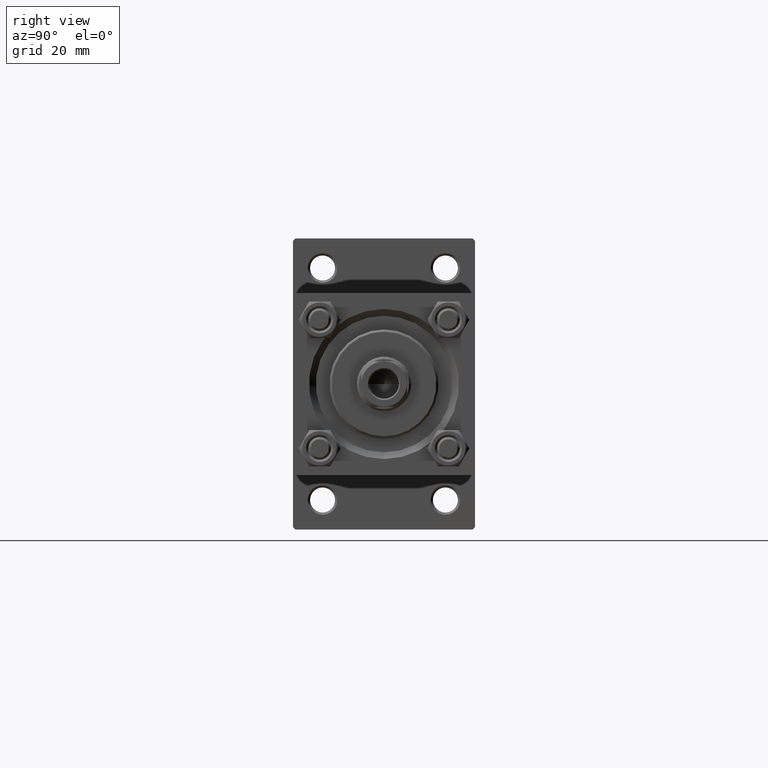
[diagram: clean part render]
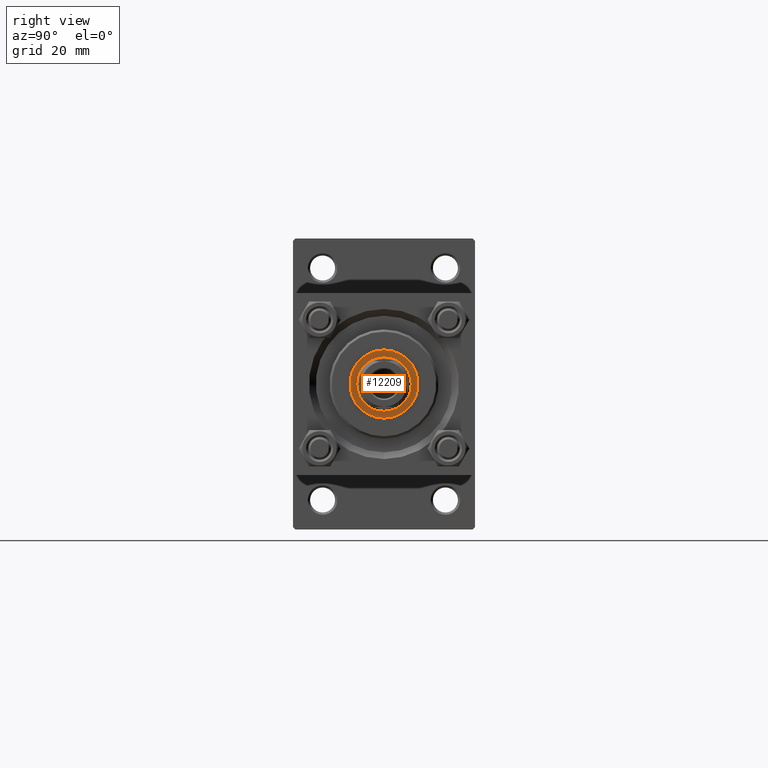
[diagram: same view with one face highlighted and labeled with its STEP entity id]
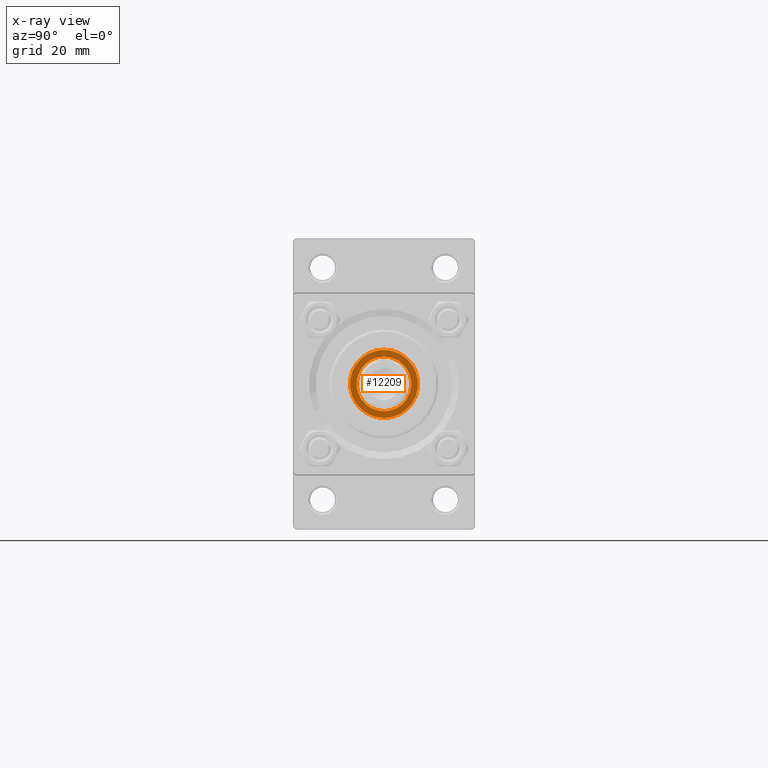
[diagram: x-ray of the same camera — body ghosted, the highlighted face saturated]
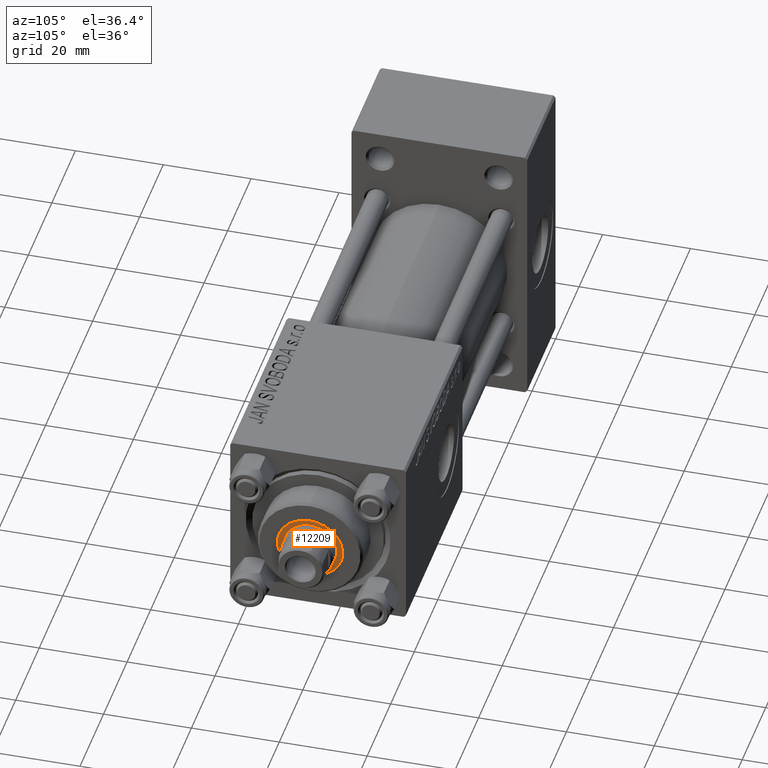
[diagram: same view with one face highlighted and labeled with its STEP entity id]
A machine part, right view. The second image highlights one B-rep face of the part: STEP entity #12209.
The next image is the same camera in x-ray: the body ghosted, the highlighted face saturated — about 0% of this face is hidden behind the body in this view.
A second angle (auxiliary view) of the same face is appended — the face is thin or edge-on in the first view.
In plain terms, the highlighted planar face has unit normal (1, 0, 0).
Its self-contained STEP definition (entity closure, byte-faithful):
#52 = DIRECTION ( 'NONE',  ( -0.000000000000000000, -0.000000000000000000, -1.000000000000000000 ) ) ;
#134 = CARTESIAN_POINT ( 'NONE',  ( 7.500000000000000888, 0.000000000000000000, 35.20000000000000284 ) ) ;
#1028 = EDGE_CURVE ( 'NONE', #38211, #49754, #14135, .T. ) ;
#2154 = FACE_OUTER_BOUND ( 'NONE', #14463, .T. ) ;
#3931 = EDGE_LOOP ( 'NONE', ( #18831, #44236 ) ) ;
#4318 = VERTEX_POINT ( 'NONE', #48153 ) ;
#6957 = VERTEX_POINT ( 'NONE', #32844 ) ;
#9497 = FACE_BOUND ( 'NONE', #3931, .T. ) ;
#10143 = CARTESIAN_POINT ( 'NONE',  ( 0.000000000000000000, 0.000000000000000000, 35.20000000000000284 ) ) ;
#12209 = ADVANCED_FACE ( 'NONE', ( #2154, #9497 ), #17580, .T. ) ;
#12670 = CIRCLE ( 'NONE', #24767, 6.000000000000000888 ) ;
#14135 = CIRCLE ( 'NONE', #48782, 7.500000000000000888 ) ;
#14463 = EDGE_LOOP ( 'NONE', ( #14744, #31127 ) ) ;
#14744 = ORIENTED_EDGE ( 'NONE', *, *, #26106, .T. ) ;
#15748 = CIRCLE ( 'NONE', #45560, 7.500000000000000888 ) ;
#15965 = CARTESIAN_POINT ( 'NONE',  ( 0.000000000000000000, 0.000000000000000000, 35.20000000000000284 ) ) ;
#17580 = PLANE ( 'NONE',  #45995 ) ;
#18831 = ORIENTED_EDGE ( 'NONE', *, *, #35082, .T. ) ;
#19995 = DIRECTION ( 'NONE',  ( 1.000000000000000000, 0.000000000000000000, 0.000000000000000000 ) ) ;
#21468 = DIRECTION ( 'NONE',  ( 0.000000000000000000, 0.000000000000000000, 1.000000000000000000 ) ) ;
#21977 = DIRECTION ( 'NONE',  ( 0.000000000000000000, 0.000000000000000000, 1.000000000000000000 ) ) ;
#22050 = AXIS2_PLACEMENT_3D ( 'NONE', #15965, #52, #19995 ) ;
#22536 = EDGE_CURVE ( 'NONE', #4318, #6957, #46203, .T. ) ;
#24524 = DIRECTION ( 'NONE',  ( -0.000000000000000000, -0.000000000000000000, -1.000000000000000000 ) ) ;
#24620 = CARTESIAN_POINT ( 'NONE',  ( 0.000000000000000000, 0.000000000000000000, 35.20000000000000284 ) ) ;
#24767 = AXIS2_PLACEMENT_3D ( 'NONE', #10143, #24524, #25277 ) ;
#25277 = DIRECTION ( 'NONE',  ( 1.000000000000000000, 0.000000000000000000, 0.000000000000000000 ) ) ;
#26106 = EDGE_CURVE ( 'NONE', #49754, #38211, #15748, .T. ) ;
#30027 = CARTESIAN_POINT ( 'NONE',  ( 0.000000000000000000, 0.000000000000000000, 35.20000000000000284 ) ) ;
#31127 = ORIENTED_EDGE ( 'NONE', *, *, #1028, .T. ) ;
#32844 = CARTESIAN_POINT ( 'NONE',  ( 6.000000000000000888, 0.000000000000000000, 35.20000000000000284 ) ) ;
#34073 = CARTESIAN_POINT ( 'NONE',  ( 0.000000000000000000, 0.000000000000000000, 35.20000000000000284 ) ) ;
#35082 = EDGE_CURVE ( 'NONE', #6957, #4318, #12670, .T. ) ;
#37850 = DIRECTION ( 'NONE',  ( 1.000000000000000000, 0.000000000000000000, 0.000000000000000000 ) ) ;
#38211 = VERTEX_POINT ( 'NONE', #49430 ) ;
#40505 = DIRECTION ( 'NONE',  ( 1.000000000000000000, 0.000000000000000000, -0.000000000000000000 ) ) ;
#40749 = DIRECTION ( 'NONE',  ( 0.000000000000000000, 0.000000000000000000, 1.000000000000000000 ) ) ;
#44236 = ORIENTED_EDGE ( 'NONE', *, *, #22536, .T. ) ;
#45432 = DIRECTION ( 'NONE',  ( 1.000000000000000000, 0.000000000000000000, 0.000000000000000000 ) ) ;
#45560 = AXIS2_PLACEMENT_3D ( 'NONE', #34073, #21977, #45432 ) ;
#45995 = AXIS2_PLACEMENT_3D ( 'NONE', #24620, #40749, #40505 ) ;
#46203 = CIRCLE ( 'NONE', #22050, 6.000000000000000888 ) ;
#48153 = CARTESIAN_POINT ( 'NONE',  ( -6.000000000000000888, 7.347880794884119736E-16, 35.20000000000000284 ) ) ;
#48782 = AXIS2_PLACEMENT_3D ( 'NONE', #30027, #21468, #37850 ) ;
#49430 = CARTESIAN_POINT ( 'NONE',  ( -7.500000000000000888, 9.184850993605149917E-16, 35.20000000000000284 ) ) ;
#49754 = VERTEX_POINT ( 'NONE', #134 ) ;